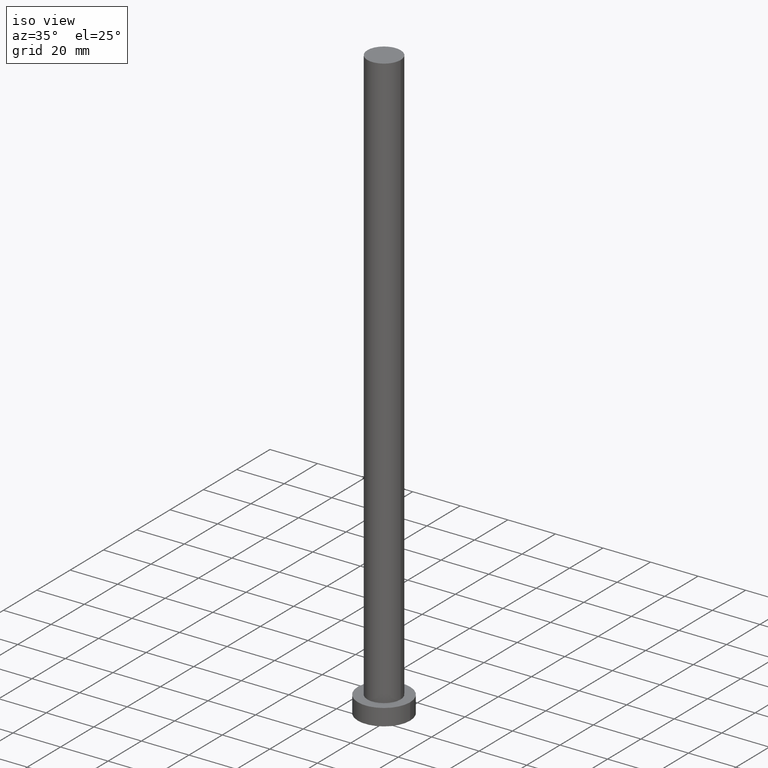
[diagram: clean part render]
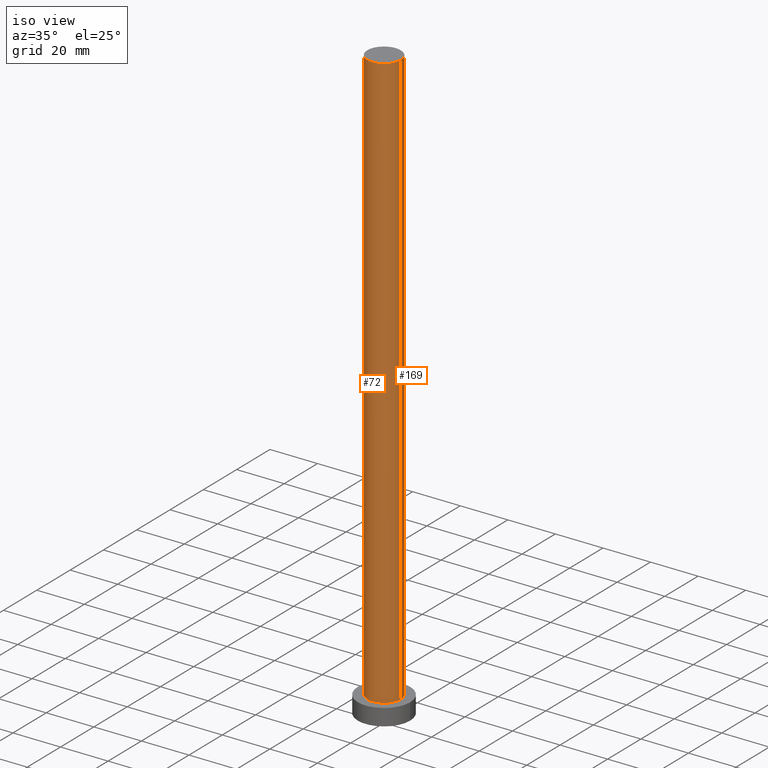
[diagram: same view with one multi-face feature highlighted, each face labeled with its STEP entity id]
A machine part, iso view. The highlighted faces form ONE feature: a constant-radius fillet chain: 2 tangent blend faces with common blend radius 7 mm. The faces share edges in the B-rep.
Their STEP definitions:
[1] entity #72 (Cylinder):
#9 = EDGE_CURVE ( 'NONE', #216, #246, #175, .T. ) ;
#19 = DIRECTION ( 'NONE',  ( -0.000000000000000000, -0.000000000000000000, -1.000000000000000000 ) ) ;
#21 = CARTESIAN_POINT ( 'NONE',  ( 0.000000000000000000, 0.000000000000000000, 250.0000000000000000 ) ) ;
#46 = ORIENTED_EDGE ( 'NONE', *, *, #9, .F. ) ;
#56 = DIRECTION ( 'NONE',  ( -0.000000000000000000, -0.000000000000000000, -1.000000000000000000 ) ) ;
#57 = CARTESIAN_POINT ( 'NONE',  ( -7.000000000000000000, 0.000000000000000000, 250.0000000000000000 ) ) ;
#61 = DIRECTION ( 'NONE',  ( 0.000000000000000000, 0.000000000000000000, 1.000000000000000000 ) ) ;
#71 = ORIENTED_EDGE ( 'NONE', *, *, #147, .F. ) ;
#72 = ADVANCED_FACE ( 'NONE', ( #195 ), #190, .T. ) ;
#80 = CARTESIAN_POINT ( 'NONE',  ( -7.000000000000000000, 0.000000000000000000, 7.000000000000000000 ) ) ;
#91 = EDGE_CURVE ( 'NONE', #216, #226, #193, .T. ) ;
#93 = CARTESIAN_POINT ( 'NONE',  ( 7.000000000000000000, 8.572527594031473190E-16, 7.000000000000000000 ) ) ;
#94 = ORIENTED_EDGE ( 'NONE', *, *, #91, .T. ) ;
#95 = EDGE_CURVE ( 'NONE', #226, #139, #132, .T. ) ;
#103 = VECTOR ( 'NONE', #56, 1000.000000000000000 ) ;
#110 = DIRECTION ( 'NONE',  ( -1.000000000000000000, 0.000000000000000000, 0.000000000000000000 ) ) ;
#116 = AXIS2_PLACEMENT_3D ( 'NONE', #121, #19, #110 ) ;
#121 = CARTESIAN_POINT ( 'NONE',  ( 0.000000000000000000, 0.000000000000000000, 250.0000000000000000 ) ) ;
#132 = CIRCLE ( 'NONE', #241, 7.000000000000000000 ) ;
#139 = VERTEX_POINT ( 'NONE', #93 ) ;
#141 = DIRECTION ( 'NONE',  ( 1.000000000000000000, 0.000000000000000000, 0.000000000000000000 ) ) ;
#147 = EDGE_CURVE ( 'NONE', #246, #139, #250, .T. ) ;
#153 = DIRECTION ( 'NONE',  ( 1.000000000000000000, 0.000000000000000000, 0.000000000000000000 ) ) ;
#168 = DIRECTION ( 'NONE',  ( 0.000000000000000000, 0.000000000000000000, 1.000000000000000000 ) ) ;
#173 = CARTESIAN_POINT ( 'NONE',  ( -7.000000000000000000, 0.000000000000000000, 250.0000000000000000 ) ) ;
#174 = CARTESIAN_POINT ( 'NONE',  ( 7.000000000000000000, 8.572527594031473190E-16, 250.0000000000000000 ) ) ;
#175 = CIRCLE ( 'NONE', #247, 7.000000000000000000 ) ;
#183 = DIRECTION ( 'NONE',  ( -0.000000000000000000, -0.000000000000000000, -1.000000000000000000 ) ) ;
#190 = CYLINDRICAL_SURFACE ( 'NONE', #116, 7.000000000000000000 ) ;
#193 = LINE ( 'NONE', #57, #235 ) ;
#195 = FACE_OUTER_BOUND ( 'NONE', #207, .T. ) ;
#207 = EDGE_LOOP ( 'NONE', ( #71, #46, #94, #232 ) ) ;
#216 = VERTEX_POINT ( 'NONE', #173 ) ;
#225 = CARTESIAN_POINT ( 'NONE',  ( 7.000000000000000000, 8.572527594031473190E-16, 250.0000000000000000 ) ) ;
#226 = VERTEX_POINT ( 'NONE', #80 ) ;
#232 = ORIENTED_EDGE ( 'NONE', *, *, #95, .T. ) ;
#235 = VECTOR ( 'NONE', #183, 1000.000000000000000 ) ;
#241 = AXIS2_PLACEMENT_3D ( 'NONE', #251, #168, #153 ) ;
#246 = VERTEX_POINT ( 'NONE', #174 ) ;
#247 = AXIS2_PLACEMENT_3D ( 'NONE', #21, #61, #141 ) ;
#250 = LINE ( 'NONE', #225, #103 ) ;
#251 = CARTESIAN_POINT ( 'NONE',  ( 0.000000000000000000, 0.000000000000000000, 7.000000000000000000 ) ) ;
[2] entity #169 (Cylinder):
#4 = AXIS2_PLACEMENT_3D ( 'NONE', #34, #115, #185 ) ;
#16 = FACE_OUTER_BOUND ( 'NONE', #37, .T. ) ;
#24 = DIRECTION ( 'NONE',  ( -0.000000000000000000, -0.000000000000000000, -1.000000000000000000 ) ) ;
#28 = CIRCLE ( 'NONE', #35, 7.000000000000000000 ) ;
#34 = CARTESIAN_POINT ( 'NONE',  ( 0.000000000000000000, 0.000000000000000000, 250.0000000000000000 ) ) ;
#35 = AXIS2_PLACEMENT_3D ( 'NONE', #145, #158, #39 ) ;
#37 = EDGE_LOOP ( 'NONE', ( #84, #45, #62, #54 ) ) ;
#39 = DIRECTION ( 'NONE',  ( 1.000000000000000000, 0.000000000000000000, 0.000000000000000000 ) ) ;
#45 = ORIENTED_EDGE ( 'NONE', *, *, #147, .T. ) ;
#53 = EDGE_CURVE ( 'NONE', #139, #226, #28, .T. ) ;
#54 = ORIENTED_EDGE ( 'NONE', *, *, #91, .F. ) ;
#56 = DIRECTION ( 'NONE',  ( -0.000000000000000000, -0.000000000000000000, -1.000000000000000000 ) ) ;
#57 = CARTESIAN_POINT ( 'NONE',  ( -7.000000000000000000, 0.000000000000000000, 250.0000000000000000 ) ) ;
#62 = ORIENTED_EDGE ( 'NONE', *, *, #53, .T. ) ;
#80 = CARTESIAN_POINT ( 'NONE',  ( -7.000000000000000000, 0.000000000000000000, 7.000000000000000000 ) ) ;
#84 = ORIENTED_EDGE ( 'NONE', *, *, #128, .F. ) ;
#91 = EDGE_CURVE ( 'NONE', #216, #226, #193, .T. ) ;
#93 = CARTESIAN_POINT ( 'NONE',  ( 7.000000000000000000, 8.572527594031473190E-16, 7.000000000000000000 ) ) ;
#103 = VECTOR ( 'NONE', #56, 1000.000000000000000 ) ;
#115 = DIRECTION ( 'NONE',  ( 0.000000000000000000, 0.000000000000000000, 1.000000000000000000 ) ) ;
#119 = CIRCLE ( 'NONE', #4, 7.000000000000000000 ) ;
#128 = EDGE_CURVE ( 'NONE', #246, #216, #119, .T. ) ;
#139 = VERTEX_POINT ( 'NONE', #93 ) ;
#145 = CARTESIAN_POINT ( 'NONE',  ( 0.000000000000000000, 0.000000000000000000, 7.000000000000000000 ) ) ;
#147 = EDGE_CURVE ( 'NONE', #246, #139, #250, .T. ) ;
#158 = DIRECTION ( 'NONE',  ( 0.000000000000000000, 0.000000000000000000, 1.000000000000000000 ) ) ;
#160 = CYLINDRICAL_SURFACE ( 'NONE', #201, 7.000000000000000000 ) ;
#169 = ADVANCED_FACE ( 'NONE', ( #16 ), #160, .T. ) ;
#173 = CARTESIAN_POINT ( 'NONE',  ( -7.000000000000000000, 0.000000000000000000, 250.0000000000000000 ) ) ;
#174 = CARTESIAN_POINT ( 'NONE',  ( 7.000000000000000000, 8.572527594031473190E-16, 250.0000000000000000 ) ) ;
#183 = DIRECTION ( 'NONE',  ( -0.000000000000000000, -0.000000000000000000, -1.000000000000000000 ) ) ;
#185 = DIRECTION ( 'NONE',  ( 1.000000000000000000, 0.000000000000000000, 0.000000000000000000 ) ) ;
#191 = DIRECTION ( 'NONE',  ( -1.000000000000000000, 0.000000000000000000, 0.000000000000000000 ) ) ;
#193 = LINE ( 'NONE', #57, #235 ) ;
#201 = AXIS2_PLACEMENT_3D ( 'NONE', #210, #24, #191 ) ;
#210 = CARTESIAN_POINT ( 'NONE',  ( 0.000000000000000000, 0.000000000000000000, 250.0000000000000000 ) ) ;
#216 = VERTEX_POINT ( 'NONE', #173 ) ;
#225 = CARTESIAN_POINT ( 'NONE',  ( 7.000000000000000000, 8.572527594031473190E-16, 250.0000000000000000 ) ) ;
#226 = VERTEX_POINT ( 'NONE', #80 ) ;
#235 = VECTOR ( 'NONE', #183, 1000.000000000000000 ) ;
#246 = VERTEX_POINT ( 'NONE', #174 ) ;
#250 = LINE ( 'NONE', #225, #103 ) ;